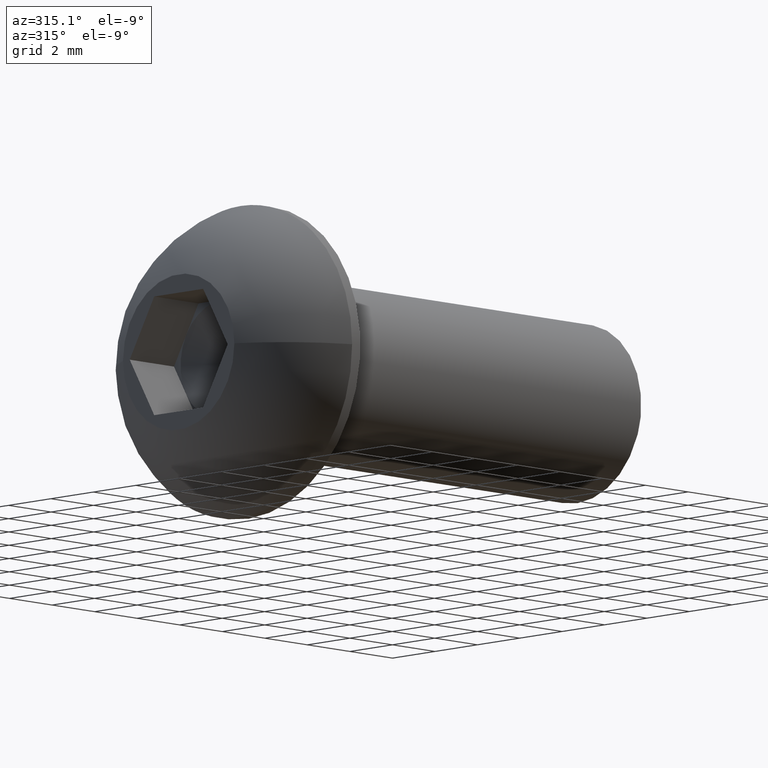
[diagram: clean part render]
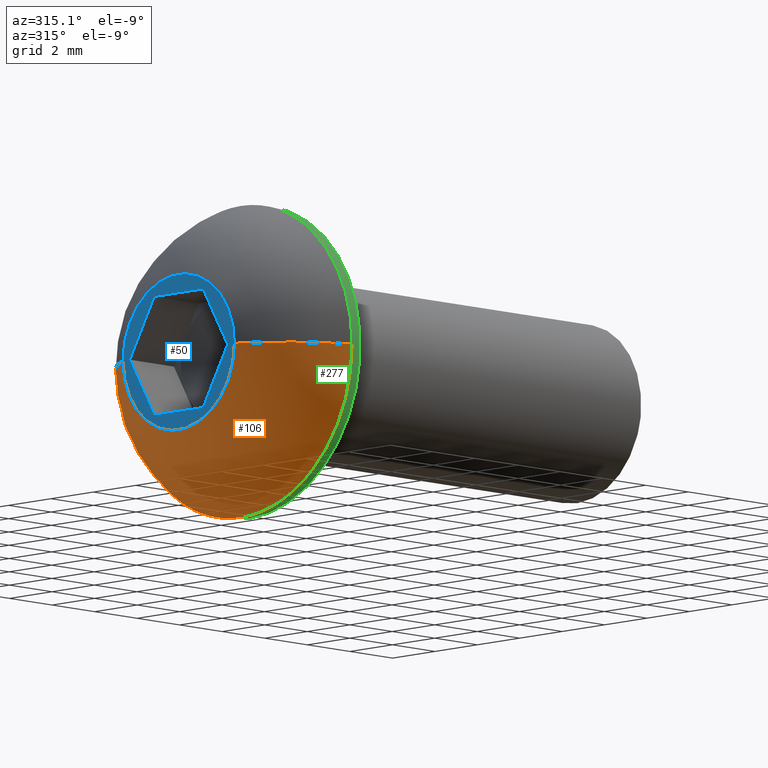
[diagram: same view with three faces highlighted in distinct colors, each labeled with its STEP entity id]
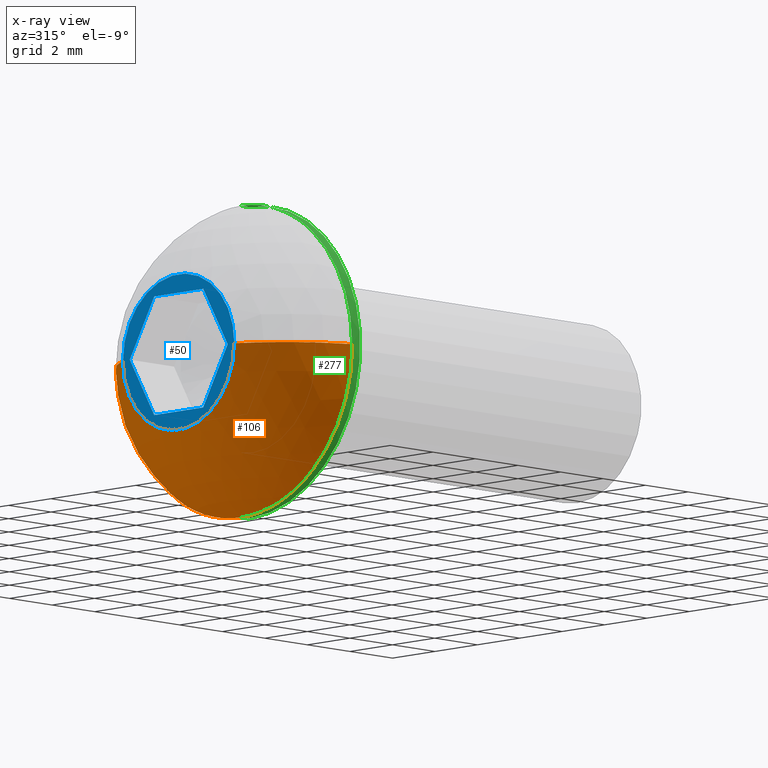
[diagram: x-ray of the same camera — body ghosted, the three highlighted faces saturated]
A machine part, auxiliary view with three faces highlighted in distinct colors.
The next image is the same camera in x-ray (body ghosted, the three faces saturated) — at least one of them is partly hidden behind the body in this view.
Their STEP definitions:

[orange] entity #106 — the highlighted spherical surface has radius 5.6469 mm.
#21 = AXIS2_PLACEMENT_3D ( 'NONE', #49, #119, #108 ) ;
#26 = ORIENTED_EDGE ( 'NONE', *, *, #90, .F. ) ;
#48 = ORIENTED_EDGE ( 'NONE', *, *, #595, .F. ) ;
#49 = CARTESIAN_POINT ( 'NONE',  ( 2.919999999999999929, 0.000000000000000000, 0.000000000000000000 ) ) ;
#57 = DIRECTION ( 'NONE',  ( 1.000000000000000000, 0.000000000000000000, 0.000000000000000000 ) ) ;
#90 = EDGE_CURVE ( 'NONE', #139, #436, #502, .T. ) ;
#106 = ADVANCED_FACE ( 'NONE', ( #472 ), #309, .T. ) ;
#108 = DIRECTION ( 'NONE',  ( 0.000000000000000000, 0.000000000000000000, 1.000000000000000000 ) ) ;
#119 = DIRECTION ( 'NONE',  ( -1.000000000000000000, -0.000000000000000000, -0.000000000000000000 ) ) ;
#120 = CARTESIAN_POINT ( 'NONE',  ( 4.999704623287675176, -7.806255641895631925E-15, 0.000000000000000000 ) ) ;
#121 = ORIENTED_EDGE ( 'NONE', *, *, #364, .T. ) ;
#122 = DIRECTION ( 'NONE',  ( 0.000000000000000000, 1.224646799147353207E-16, -1.000000000000000000 ) ) ;
#139 = VERTEX_POINT ( 'NONE', #428 ) ;
#150 = CARTESIAN_POINT ( 'NONE',  ( 8.673617379884035472E-16, 2.625000000000000000, 0.000000000000000000 ) ) ;
#156 = CIRCLE ( 'NONE', #230, 5.646916974785816556 ) ;
#170 = DIRECTION ( 'NONE',  ( 0.000000000000000000, 0.000000000000000000, 1.000000000000000000 ) ) ;
#230 = AXIS2_PLACEMENT_3D ( 'NONE', #297, #122, #708 ) ;
#297 = CARTESIAN_POINT ( 'NONE',  ( 4.999704623287675176, -7.806255641895631925E-15, 0.000000000000000000 ) ) ;
#301 = VERTEX_POINT ( 'NONE', #439 ) ;
#305 = CIRCLE ( 'NONE', #468, 5.249999999999997335 ) ;
#309 = SPHERICAL_SURFACE ( 'NONE', #515, 5.646916974785816556 ) ;
#360 = AXIS2_PLACEMENT_3D ( 'NONE', #469, #703, #170 ) ;
#364 = EDGE_CURVE ( 'NONE', #139, #301, #305, .T. ) ;
#367 = CARTESIAN_POINT ( 'NONE',  ( 4.999704623287675176, -7.806255641895631925E-15, 0.000000000000000000 ) ) ;
#416 = ORIENTED_EDGE ( 'NONE', *, *, #509, .T. ) ;
#428 = CARTESIAN_POINT ( 'NONE',  ( 2.919999999999999929, 5.249999999999997335, 0.000000000000000000 ) ) ;
#433 = VERTEX_POINT ( 'NONE', #447 ) ;
#436 = VERTEX_POINT ( 'NONE', #150 ) ;
#439 = CARTESIAN_POINT ( 'NONE',  ( 2.919999999999999929, 6.429395695523601195E-16, -5.249999999999997335 ) ) ;
#447 = CARTESIAN_POINT ( 'NONE',  ( 2.919999999999999929, -5.250000000000005329, -6.429395695523601195E-16 ) ) ;
#468 = AXIS2_PLACEMENT_3D ( 'NONE', #682, #573, #570 ) ;
#469 = CARTESIAN_POINT ( 'NONE',  ( 8.673617379884035472E-16, 0.000000000000000000, 0.000000000000000000 ) ) ;
#472 = FACE_OUTER_BOUND ( 'NONE', #645, .T. ) ;
#480 = AXIS2_PLACEMENT_3D ( 'NONE', #367, #718, #57 ) ;
#487 = EDGE_CURVE ( 'NONE', #301, #433, #702, .T. ) ;
#491 = CIRCLE ( 'NONE', #360, 2.625000000000000444 ) ;
#502 = CIRCLE ( 'NONE', #480, 5.646916974785816556 ) ;
#509 = EDGE_CURVE ( 'NONE', #433, #688, #156, .T. ) ;
#515 = AXIS2_PLACEMENT_3D ( 'NONE', #120, #523, #715 ) ;
#523 = DIRECTION ( 'NONE',  ( 0.000000000000000000, 0.000000000000000000, -1.000000000000000000 ) ) ;
#570 = DIRECTION ( 'NONE',  ( 0.000000000000000000, 0.000000000000000000, 1.000000000000000000 ) ) ;
#573 = DIRECTION ( 'NONE',  ( -1.000000000000000000, -0.000000000000000000, -0.000000000000000000 ) ) ;
#595 = EDGE_CURVE ( 'NONE', #436, #688, #491, .T. ) ;
#645 = EDGE_LOOP ( 'NONE', ( #121, #677, #416, #48, #26 ) ) ;
#677 = ORIENTED_EDGE ( 'NONE', *, *, #487, .T. ) ;
#678 = CARTESIAN_POINT ( 'NONE',  ( 8.673617379884035472E-16, -2.625000000000000444, -4.822046771642698431E-16 ) ) ;
#682 = CARTESIAN_POINT ( 'NONE',  ( 2.919999999999999929, 0.000000000000000000, 0.000000000000000000 ) ) ;
#688 = VERTEX_POINT ( 'NONE', #678 ) ;
#702 = CIRCLE ( 'NONE', #21, 5.249999999999997335 ) ;
#703 = DIRECTION ( 'NONE',  ( -1.000000000000000000, -0.000000000000000000, -0.000000000000000000 ) ) ;
#708 = DIRECTION ( 'NONE',  ( 0.000000000000000000, 1.000000000000000000, 1.224646799147353207E-16 ) ) ;
#715 = DIRECTION ( 'NONE',  ( 0.000000000000000000, 1.000000000000000000, 0.000000000000000000 ) ) ;
#718 = DIRECTION ( 'NONE',  ( 0.000000000000000000, 0.000000000000000000, 1.000000000000000000 ) ) ;

[blue] entity #50 — the highlighted planar face has unit normal (-1, 0, -0).
#4 = ORIENTED_EDGE ( 'NONE', *, *, #465, .T. ) ;
#5 = CARTESIAN_POINT ( 'NONE',  ( 0.000000000000000000, -1.154700538379250796, -2.000000000000000000 ) ) ;
#20 = VECTOR ( 'NONE', #653, 1000.000000000000000 ) ;
#35 = VECTOR ( 'NONE', #128, 1000.000000000000000 ) ;
#46 = VECTOR ( 'NONE', #262, 1000.000000000000227 ) ;
#50 = ADVANCED_FACE ( 'NONE', ( #499, #214 ), #503, .T. ) ;
#56 = CARTESIAN_POINT ( 'NONE',  ( 0.000000000000000000, 1.154700538379252572, 2.000000000000000444 ) ) ;
#82 = CARTESIAN_POINT ( 'NONE',  ( 0.000000000000000000, 2.309401076758502480, 7.017607234860990640E-28 ) ) ;
#110 = EDGE_CURVE ( 'NONE', #314, #488, #581, .T. ) ;
#111 = VECTOR ( 'NONE', #244, 1000.000000000000114 ) ;
#128 = DIRECTION ( 'NONE',  ( -0.000000000000000000, 1.000000000000000000, -3.755786496842897578E-16 ) ) ;
#147 = CARTESIAN_POINT ( 'NONE',  ( 0.000000000000000000, -2.309401076758495819, -9.940406668478583332E-17 ) ) ;
#148 = CARTESIAN_POINT ( 'NONE',  ( 0.000000000000000000, 2.309401076758502480, 7.017607234860990640E-28 ) ) ;
#150 = CARTESIAN_POINT ( 'NONE',  ( 8.673617379884035472E-16, 2.625000000000000000, 0.000000000000000000 ) ) ;
#170 = DIRECTION ( 'NONE',  ( 0.000000000000000000, 0.000000000000000000, 1.000000000000000000 ) ) ;
#195 = EDGE_CURVE ( 'NONE', #688, #436, #536, .T. ) ;
#214 = FACE_BOUND ( 'NONE', #658, .T. ) ;
#243 = EDGE_CURVE ( 'NONE', #612, #721, #267, .T. ) ;
#244 = DIRECTION ( 'NONE',  ( -0.000000000000000000, -0.4999999999999992784, 0.8660254037844390407 ) ) ;
#246 = LINE ( 'NONE', #323, #35 ) ;
#262 = DIRECTION ( 'NONE',  ( -0.000000000000000000, 0.4999999999999978906, -0.8660254037844399289 ) ) ;
#267 = LINE ( 'NONE', #673, #46 ) ;
#296 = ORIENTED_EDGE ( 'NONE', *, *, #595, .T. ) ;
#299 = CARTESIAN_POINT ( 'NONE',  ( 0.000000000000000000, 1.154700538379252794, -2.000000000000000888 ) ) ;
#303 = CARTESIAN_POINT ( 'NONE',  ( 0.000000000000000000, 1.154700538379252572, 2.000000000000000444 ) ) ;
#304 = AXIS2_PLACEMENT_3D ( 'NONE', #749, #739, #403 ) ;
#313 = DIRECTION ( 'NONE',  ( -0.000000000000000000, 0.4999999999999991118, 0.8660254037844391517 ) ) ;
#314 = VERTEX_POINT ( 'NONE', #148 ) ;
#323 = CARTESIAN_POINT ( 'NONE',  ( 0.000000000000000000, 1.154700538379252794, -2.000000000000000888 ) ) ;
#326 = EDGE_CURVE ( 'NONE', #528, #314, #389, .T. ) ;
#329 = CARTESIAN_POINT ( 'NONE',  ( 8.673617379884035472E-16, 0.000000000000000000, 0.000000000000000000 ) ) ;
#339 = EDGE_CURVE ( 'NONE', #511, #612, #406, .T. ) ;
#360 = AXIS2_PLACEMENT_3D ( 'NONE', #469, #703, #170 ) ;
#389 = LINE ( 'NONE', #82, #526 ) ;
#403 = DIRECTION ( 'NONE',  ( -0.000000000000000000, 0.000000000000000000, 1.000000000000000000 ) ) ;
#406 = LINE ( 'NONE', #464, #760 ) ;
#414 = LINE ( 'NONE', #479, #20 ) ;
#432 = DIRECTION ( 'NONE',  ( 0.000000000000000000, 0.000000000000000000, 1.000000000000000000 ) ) ;
#436 = VERTEX_POINT ( 'NONE', #150 ) ;
#452 = ORIENTED_EDGE ( 'NONE', *, *, #339, .T. ) ;
#464 = CARTESIAN_POINT ( 'NONE',  ( 0.000000000000000000, -2.309401076758495819, -9.940406668478583332E-17 ) ) ;
#465 = EDGE_CURVE ( 'NONE', #488, #511, #414, .T. ) ;
#469 = CARTESIAN_POINT ( 'NONE',  ( 8.673617379884035472E-16, 0.000000000000000000, 0.000000000000000000 ) ) ;
#479 = CARTESIAN_POINT ( 'NONE',  ( 0.000000000000000000, -1.154700538379251018, 1.999999999999999112 ) ) ;
#488 = VERTEX_POINT ( 'NONE', #56 ) ;
#491 = CIRCLE ( 'NONE', #360, 2.625000000000000444 ) ;
#499 = FACE_OUTER_BOUND ( 'NONE', #745, .T. ) ;
#503 = PLANE ( 'NONE',  #304 ) ;
#511 = VERTEX_POINT ( 'NONE', #601 ) ;
#526 = VECTOR ( 'NONE', #313, 1000.000000000000000 ) ;
#528 = VERTEX_POINT ( 'NONE', #299 ) ;
#536 = CIRCLE ( 'NONE', #723, 2.625000000000000444 ) ;
#540 = ORIENTED_EDGE ( 'NONE', *, *, #720, .T. ) ;
#581 = LINE ( 'NONE', #303, #111 ) ;
#595 = EDGE_CURVE ( 'NONE', #436, #688, #491, .T. ) ;
#601 = CARTESIAN_POINT ( 'NONE',  ( 4.336808689942017736E-16, -1.154700538379251018, 1.999999999999999112 ) ) ;
#608 = DIRECTION ( 'NONE',  ( -1.000000000000000000, -0.000000000000000000, -0.000000000000000000 ) ) ;
#612 = VERTEX_POINT ( 'NONE', #147 ) ;
#629 = ORIENTED_EDGE ( 'NONE', *, *, #195, .T. ) ;
#639 = ORIENTED_EDGE ( 'NONE', *, *, #243, .T. ) ;
#653 = DIRECTION ( 'NONE',  ( -0.000000000000000000, -1.000000000000000000, -5.633679745264346614E-16 ) ) ;
#658 = EDGE_LOOP ( 'NONE', ( #4, #452, #639, #540, #709, #705 ) ) ;
#673 = CARTESIAN_POINT ( 'NONE',  ( 0.000000000000000000, -1.154700538379250796, -2.000000000000000000 ) ) ;
#678 = CARTESIAN_POINT ( 'NONE',  ( 8.673617379884035472E-16, -2.625000000000000444, -4.822046771642698431E-16 ) ) ;
#688 = VERTEX_POINT ( 'NONE', #678 ) ;
#697 = DIRECTION ( 'NONE',  ( -0.000000000000000000, -0.4999999999999979461, -0.8660254037844397068 ) ) ;
#703 = DIRECTION ( 'NONE',  ( -1.000000000000000000, -0.000000000000000000, -0.000000000000000000 ) ) ;
#705 = ORIENTED_EDGE ( 'NONE', *, *, #110, .T. ) ;
#709 = ORIENTED_EDGE ( 'NONE', *, *, #326, .T. ) ;
#720 = EDGE_CURVE ( 'NONE', #721, #528, #246, .T. ) ;
#721 = VERTEX_POINT ( 'NONE', #5 ) ;
#723 = AXIS2_PLACEMENT_3D ( 'NONE', #329, #608, #432 ) ;
#739 = DIRECTION ( 'NONE',  ( -1.000000000000000000, 0.000000000000000000, -0.000000000000000000 ) ) ;
#745 = EDGE_LOOP ( 'NONE', ( #296, #629 ) ) ;
#749 = CARTESIAN_POINT ( 'NONE',  ( 4.336808689942017736E-16, 0.000000000000000000, 0.000000000000000000 ) ) ;
#760 = VECTOR ( 'NONE', #697, 1000.000000000000114 ) ;

[green] entity #277 — the highlighted cylindrical surface (partial cylindrical patch) has radius 5.25 mm, axis along (-1, -0, -0).
#11 = EDGE_CURVE ( 'NONE', #89, #560, #204, .T. ) ;
#13 = DIRECTION ( 'NONE',  ( -1.000000000000000000, -0.000000000000000000, -0.000000000000000000 ) ) ;
#21 = AXIS2_PLACEMENT_3D ( 'NONE', #49, #119, #108 ) ;
#42 = CARTESIAN_POINT ( 'NONE',  ( 0.000000000000000000, 0.000000000000000000, 5.249999999999996447 ) ) ;
#49 = CARTESIAN_POINT ( 'NONE',  ( 2.919999999999999929, 0.000000000000000000, 0.000000000000000000 ) ) ;
#69 = CYLINDRICAL_SURFACE ( 'NONE', #380, 5.249999999999996447 ) ;
#79 = CARTESIAN_POINT ( 'NONE',  ( 3.299999999999999822, 0.000000000000000000, 0.000000000000000000 ) ) ;
#89 = VERTEX_POINT ( 'NONE', #598 ) ;
#108 = DIRECTION ( 'NONE',  ( 0.000000000000000000, 0.000000000000000000, 1.000000000000000000 ) ) ;
#112 = VECTOR ( 'NONE', #717, 1000.000000000000000 ) ;
#119 = DIRECTION ( 'NONE',  ( -1.000000000000000000, -0.000000000000000000, -0.000000000000000000 ) ) ;
#142 = AXIS2_PLACEMENT_3D ( 'NONE', #500, #311, #544 ) ;
#187 = EDGE_CURVE ( 'NONE', #560, #572, #584, .T. ) ;
#196 = CARTESIAN_POINT ( 'NONE',  ( 0.000000000000000000, 6.429395695523600208E-16, -5.249999999999996447 ) ) ;
#204 = CIRCLE ( 'NONE', #602, 5.249999999999995559 ) ;
#209 = DIRECTION ( 'NONE',  ( 0.000000000000000000, 0.000000000000000000, 1.000000000000000000 ) ) ;
#249 = LINE ( 'NONE', #196, #112 ) ;
#252 = ORIENTED_EDGE ( 'NONE', *, *, #11, .T. ) ;
#277 = ADVANCED_FACE ( 'NONE', ( #729 ), #69, .T. ) ;
#301 = VERTEX_POINT ( 'NONE', #439 ) ;
#311 = DIRECTION ( 'NONE',  ( -1.000000000000000000, -0.000000000000000000, -0.000000000000000000 ) ) ;
#378 = ORIENTED_EDGE ( 'NONE', *, *, #487, .F. ) ;
#380 = AXIS2_PLACEMENT_3D ( 'NONE', #505, #13, #209 ) ;
#386 = DIRECTION ( 'NONE',  ( -1.000000000000000000, -0.000000000000000000, -0.000000000000000000 ) ) ;
#391 = ORIENTED_EDGE ( 'NONE', *, *, #669, .F. ) ;
#433 = VERTEX_POINT ( 'NONE', #447 ) ;
#435 = DIRECTION ( 'NONE',  ( -1.000000000000000000, -0.000000000000000000, -0.000000000000000000 ) ) ;
#439 = CARTESIAN_POINT ( 'NONE',  ( 2.919999999999999929, 6.429395695523601195E-16, -5.249999999999997335 ) ) ;
#447 = CARTESIAN_POINT ( 'NONE',  ( 2.919999999999999929, -5.250000000000005329, -6.429395695523601195E-16 ) ) ;
#448 = DIRECTION ( 'NONE',  ( 0.000000000000000000, 0.000000000000000000, 1.000000000000000000 ) ) ;
#481 = CIRCLE ( 'NONE', #142, 5.249999999999997335 ) ;
#487 = EDGE_CURVE ( 'NONE', #301, #433, #702, .T. ) ;
#500 = CARTESIAN_POINT ( 'NONE',  ( 2.919999999999999929, 0.000000000000000000, 0.000000000000000000 ) ) ;
#505 = CARTESIAN_POINT ( 'NONE',  ( 0.000000000000000000, 0.000000000000000000, 0.000000000000000000 ) ) ;
#524 = ORIENTED_EDGE ( 'NONE', *, *, #187, .T. ) ;
#525 = VECTOR ( 'NONE', #435, 1000.000000000000000 ) ;
#529 = CARTESIAN_POINT ( 'NONE',  ( 2.919999999999999929, 0.000000000000000000, 5.249999999999997335 ) ) ;
#543 = EDGE_LOOP ( 'NONE', ( #652, #252, #524, #391, #378 ) ) ;
#544 = DIRECTION ( 'NONE',  ( 0.000000000000000000, 0.000000000000000000, 1.000000000000000000 ) ) ;
#560 = VERTEX_POINT ( 'NONE', #651 ) ;
#572 = VERTEX_POINT ( 'NONE', #529 ) ;
#584 = LINE ( 'NONE', #42, #525 ) ;
#598 = CARTESIAN_POINT ( 'NONE',  ( 3.299999999999999822, 6.429395695523600208E-16, -5.249999999999995559 ) ) ;
#602 = AXIS2_PLACEMENT_3D ( 'NONE', #79, #386, #448 ) ;
#606 = EDGE_CURVE ( 'NONE', #89, #301, #249, .T. ) ;
#651 = CARTESIAN_POINT ( 'NONE',  ( 3.299999999999999822, 0.000000000000000000, 5.249999999999995559 ) ) ;
#652 = ORIENTED_EDGE ( 'NONE', *, *, #606, .F. ) ;
#669 = EDGE_CURVE ( 'NONE', #433, #572, #481, .T. ) ;
#702 = CIRCLE ( 'NONE', #21, 5.249999999999997335 ) ;
#717 = DIRECTION ( 'NONE',  ( -1.000000000000000000, -0.000000000000000000, -0.000000000000000000 ) ) ;
#729 = FACE_OUTER_BOUND ( 'NONE', #543, .T. ) ;